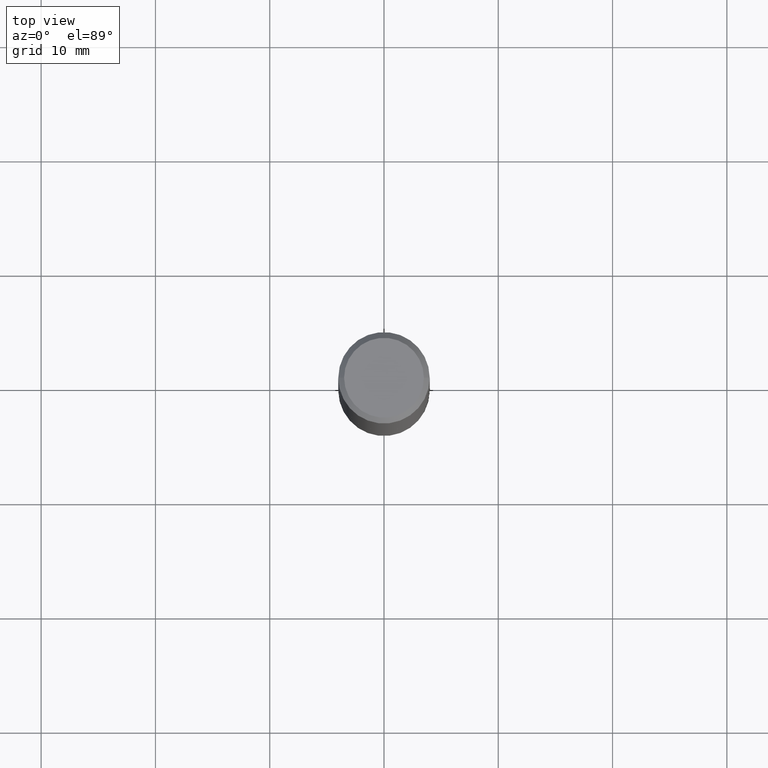
[diagram: clean part render]
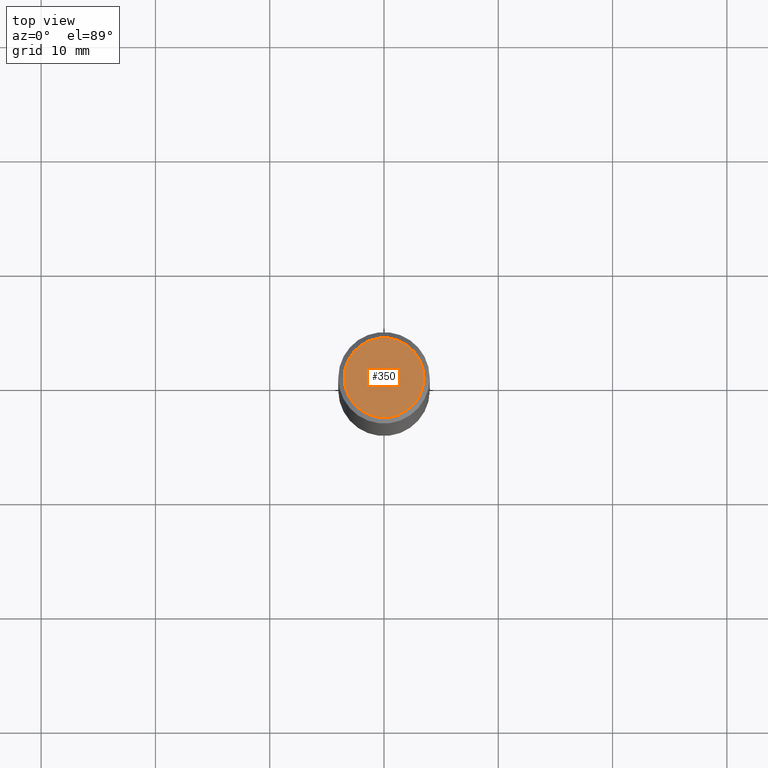
[diagram: same view with one face highlighted and labeled with its STEP entity id]
A machine part, top view. The second image highlights one B-rep face of the part: STEP entity #350.
In plain terms, the highlighted planar face has unit normal (0, -0, -1).
Its self-contained STEP definition (entity closure, byte-faithful):
#9 = CARTESIAN_POINT ( 'NONE',  ( 0.1374999999999997891, -1.046838268059730914E-15, 8.537024980207840646E-18 ) ) ;
#11 = DIRECTION ( 'NONE',  ( -1.000000000000000000, 6.982962677686265922E-15, -4.876176775795935793E-29 ) ) ;
#23 = DIRECTION ( 'NONE',  ( -2.445468806185136597E-29, 3.491481338843145583E-15, 1.000000000000000000 ) ) ;
#30 = VERTEX_POINT ( 'NONE', #195 ) ;
#75 = EDGE_CURVE ( 'NONE', #30, #167, #98, .T. ) ;
#82 = DIRECTION ( 'NONE',  ( 1.000000000000000000, -6.982962677686267499E-15, 4.876173381029107889E-29 ) ) ;
#98 = CIRCLE ( 'NONE', #175, 0.1374999999999997891 ) ;
#125 = CARTESIAN_POINT ( 'NONE',  ( 9.601573681818600950E-16, 0.1374999999999997891, -4.758101716008313957E-16 ) ) ;
#140 = ORIENTED_EDGE ( 'NONE', *, *, #75, .T. ) ;
#161 = CIRCLE ( 'NONE', #188, 0.1374999999999997891 ) ;
#167 = VERTEX_POINT ( 'NONE', #9 ) ;
#173 = DIRECTION ( 'NONE',  ( 1.000000000000000000, -6.982962677686267499E-15, 4.876173381029107889E-29 ) ) ;
#175 = AXIS2_PLACEMENT_3D ( 'NONE', #252, #234, #173 ) ;
#179 = PLANE ( 'NONE',  #241 ) ;
#188 = AXIS2_PLACEMENT_3D ( 'NONE', #216, #23, #82 ) ;
#195 = CARTESIAN_POINT ( 'NONE',  ( -0.1374999999999997891, 9.950721815702913496E-16, 8.537024980193986277E-18 ) ) ;
#216 = CARTESIAN_POINT ( 'NONE',  ( -2.087702828670439639E-46, 2.980686340760894400E-32, 8.537024980200822558E-18 ) ) ;
#234 = DIRECTION ( 'NONE',  ( -2.445468806185136597E-29, 3.491481338843145583E-15, 1.000000000000000000 ) ) ;
#241 = AXIS2_PLACEMENT_3D ( 'NONE', #125, #345, #11 ) ;
#252 = CARTESIAN_POINT ( 'NONE',  ( -2.087702828670439639E-46, 2.980686340760894400E-32, 8.537024980200822558E-18 ) ) ;
#262 = FACE_OUTER_BOUND ( 'NONE', #286, .T. ) ;
#276 = EDGE_CURVE ( 'NONE', #167, #30, #161, .T. ) ;
#282 = ORIENTED_EDGE ( 'NONE', *, *, #276, .T. ) ;
#286 = EDGE_LOOP ( 'NONE', ( #140, #282 ) ) ;
#345 = DIRECTION ( 'NONE',  ( 2.438088387897960049E-29, -3.491481338843145188E-15, -1.000000000000000000 ) ) ;
#350 = ADVANCED_FACE ( 'NONE', ( #262 ), #179, .F. ) ;